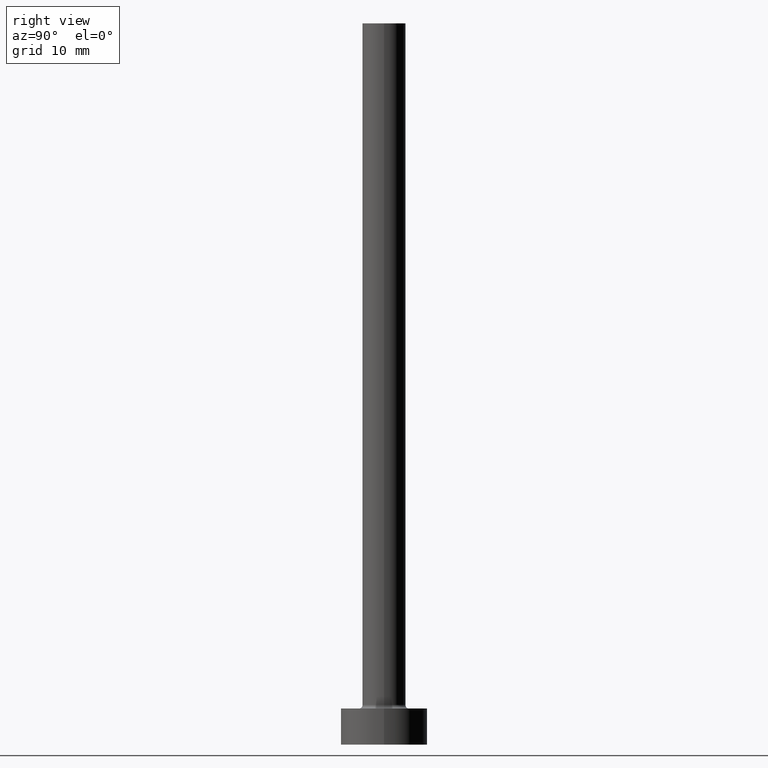
[diagram: clean part render]
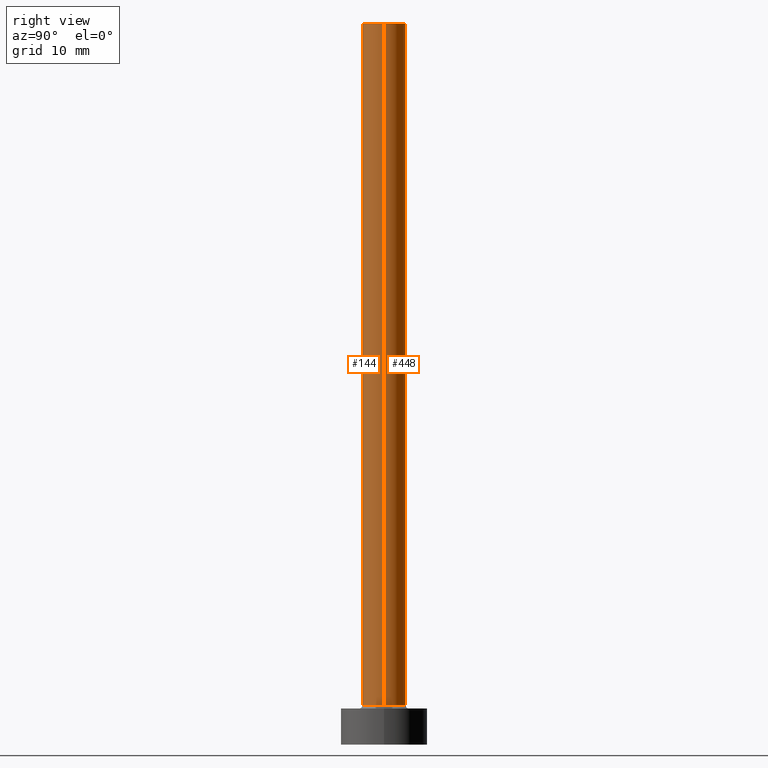
[diagram: same view with one multi-face feature highlighted, each face labeled with its STEP entity id]
A machine part, right view. The highlighted faces form ONE feature: a constant-radius fillet chain: 2 tangent blend faces with common blend radius 3 mm. The faces share edges in the B-rep.
Their STEP definitions:
[1] entity #448 (Cylinder):
#6 = VERTEX_POINT ( 'NONE', #192 ) ;
#8 = AXIS2_PLACEMENT_3D ( 'NONE', #281, #450, #112 ) ;
#25 = EDGE_CURVE ( 'NONE', #282, #210, #42, .T. ) ;
#26 = CARTESIAN_POINT ( 'NONE',  ( 3.000000000000000444, 3.673940397442060361E-16, 100.0000000000000000 ) ) ;
#42 = LINE ( 'NONE', #44, #393 ) ;
#44 = CARTESIAN_POINT ( 'NONE',  ( -3.000000000000000444, 0.000000000000000000, 100.0000000000000000 ) ) ;
#58 = DIRECTION ( 'NONE',  ( 0.000000000000000000, 0.000000000000000000, 1.000000000000000000 ) ) ;
#61 = CARTESIAN_POINT ( 'NONE',  ( -3.000000000000000444, 0.000000000000000000, 5.500000000000005329 ) ) ;
#76 = DIRECTION ( 'NONE',  ( -0.000000000000000000, -0.000000000000000000, -1.000000000000000000 ) ) ;
#92 = CIRCLE ( 'NONE', #349, 3.000000000000000444 ) ;
#112 = DIRECTION ( 'NONE',  ( -1.000000000000000000, 0.000000000000000000, 0.000000000000000000 ) ) ;
#115 = EDGE_LOOP ( 'NONE', ( #387, #252, #214, #177 ) ) ;
#117 = AXIS2_PLACEMENT_3D ( 'NONE', #131, #58, #341 ) ;
#127 = CARTESIAN_POINT ( 'NONE',  ( 3.000000000000000444, 3.673940397442060361E-16, 5.500000000000005329 ) ) ;
#131 = CARTESIAN_POINT ( 'NONE',  ( 0.000000000000000000, 0.000000000000000000, 5.500000000000005329 ) ) ;
#146 = CYLINDRICAL_SURFACE ( 'NONE', #8, 3.000000000000000444 ) ;
#156 = CIRCLE ( 'NONE', #117, 3.000000000000000444 ) ;
#177 = ORIENTED_EDGE ( 'NONE', *, *, #25, .F. ) ;
#178 = CARTESIAN_POINT ( 'NONE',  ( 0.000000000000000000, 0.000000000000000000, 100.0000000000000000 ) ) ;
#187 = VERTEX_POINT ( 'NONE', #127 ) ;
#192 = CARTESIAN_POINT ( 'NONE',  ( 3.000000000000000444, 3.673940397442060361E-16, 100.0000000000000000 ) ) ;
#208 = DIRECTION ( 'NONE',  ( -0.000000000000000000, -0.000000000000000000, -1.000000000000000000 ) ) ;
#210 = VERTEX_POINT ( 'NONE', #61 ) ;
#211 = EDGE_CURVE ( 'NONE', #187, #210, #156, .T. ) ;
#214 = ORIENTED_EDGE ( 'NONE', *, *, #211, .T. ) ;
#216 = LINE ( 'NONE', #26, #395 ) ;
#252 = ORIENTED_EDGE ( 'NONE', *, *, #402, .T. ) ;
#281 = CARTESIAN_POINT ( 'NONE',  ( 0.000000000000000000, 0.000000000000000000, 100.0000000000000000 ) ) ;
#282 = VERTEX_POINT ( 'NONE', #307 ) ;
#307 = CARTESIAN_POINT ( 'NONE',  ( -3.000000000000000444, 0.000000000000000000, 100.0000000000000000 ) ) ;
#314 = DIRECTION ( 'NONE',  ( 0.000000000000000000, 0.000000000000000000, 1.000000000000000000 ) ) ;
#341 = DIRECTION ( 'NONE',  ( 1.000000000000000000, 0.000000000000000000, 0.000000000000000000 ) ) ;
#349 = AXIS2_PLACEMENT_3D ( 'NONE', #178, #314, #424 ) ;
#387 = ORIENTED_EDGE ( 'NONE', *, *, #429, .F. ) ;
#393 = VECTOR ( 'NONE', #76, 1000.000000000000000 ) ;
#395 = VECTOR ( 'NONE', #208, 1000.000000000000000 ) ;
#402 = EDGE_CURVE ( 'NONE', #6, #187, #216, .T. ) ;
#424 = DIRECTION ( 'NONE',  ( 1.000000000000000000, 0.000000000000000000, 0.000000000000000000 ) ) ;
#429 = EDGE_CURVE ( 'NONE', #6, #282, #92, .T. ) ;
#448 = ADVANCED_FACE ( 'NONE', ( #455 ), #146, .T. ) ;
#450 = DIRECTION ( 'NONE',  ( -0.000000000000000000, -0.000000000000000000, -1.000000000000000000 ) ) ;
#455 = FACE_OUTER_BOUND ( 'NONE', #115, .T. ) ;
[2] entity #144 (Cylinder):
#6 = VERTEX_POINT ( 'NONE', #192 ) ;
#25 = EDGE_CURVE ( 'NONE', #282, #210, #42, .T. ) ;
#26 = CARTESIAN_POINT ( 'NONE',  ( 3.000000000000000444, 3.673940397442060361E-16, 100.0000000000000000 ) ) ;
#33 = AXIS2_PLACEMENT_3D ( 'NONE', #155, #89, #447 ) ;
#35 = DIRECTION ( 'NONE',  ( 0.000000000000000000, 0.000000000000000000, 1.000000000000000000 ) ) ;
#42 = LINE ( 'NONE', #44, #393 ) ;
#44 = CARTESIAN_POINT ( 'NONE',  ( -3.000000000000000444, 0.000000000000000000, 100.0000000000000000 ) ) ;
#61 = CARTESIAN_POINT ( 'NONE',  ( -3.000000000000000444, 0.000000000000000000, 5.500000000000005329 ) ) ;
#76 = DIRECTION ( 'NONE',  ( -0.000000000000000000, -0.000000000000000000, -1.000000000000000000 ) ) ;
#89 = DIRECTION ( 'NONE',  ( -0.000000000000000000, -0.000000000000000000, -1.000000000000000000 ) ) ;
#91 = DIRECTION ( 'NONE',  ( 0.000000000000000000, 0.000000000000000000, 1.000000000000000000 ) ) ;
#127 = CARTESIAN_POINT ( 'NONE',  ( 3.000000000000000444, 3.673940397442060361E-16, 5.500000000000005329 ) ) ;
#144 = ADVANCED_FACE ( 'NONE', ( #268 ), #375, .T. ) ;
#149 = ORIENTED_EDGE ( 'NONE', *, *, #174, .F. ) ;
#155 = CARTESIAN_POINT ( 'NONE',  ( 0.000000000000000000, 0.000000000000000000, 100.0000000000000000 ) ) ;
#174 = EDGE_CURVE ( 'NONE', #282, #6, #422, .T. ) ;
#187 = VERTEX_POINT ( 'NONE', #127 ) ;
#192 = CARTESIAN_POINT ( 'NONE',  ( 3.000000000000000444, 3.673940397442060361E-16, 100.0000000000000000 ) ) ;
#194 = DIRECTION ( 'NONE',  ( 1.000000000000000000, 0.000000000000000000, 0.000000000000000000 ) ) ;
#208 = DIRECTION ( 'NONE',  ( -0.000000000000000000, -0.000000000000000000, -1.000000000000000000 ) ) ;
#210 = VERTEX_POINT ( 'NONE', #61 ) ;
#216 = LINE ( 'NONE', #26, #395 ) ;
#243 = ORIENTED_EDGE ( 'NONE', *, *, #25, .T. ) ;
#268 = FACE_OUTER_BOUND ( 'NONE', #311, .T. ) ;
#270 = CIRCLE ( 'NONE', #389, 3.000000000000000444 ) ;
#282 = VERTEX_POINT ( 'NONE', #307 ) ;
#285 = AXIS2_PLACEMENT_3D ( 'NONE', #438, #91, #194 ) ;
#307 = CARTESIAN_POINT ( 'NONE',  ( -3.000000000000000444, 0.000000000000000000, 100.0000000000000000 ) ) ;
#311 = EDGE_LOOP ( 'NONE', ( #418, #149, #243, #433 ) ) ;
#312 = CARTESIAN_POINT ( 'NONE',  ( 0.000000000000000000, 0.000000000000000000, 5.500000000000005329 ) ) ;
#375 = CYLINDRICAL_SURFACE ( 'NONE', #33, 3.000000000000000444 ) ;
#383 = EDGE_CURVE ( 'NONE', #210, #187, #270, .T. ) ;
#384 = DIRECTION ( 'NONE',  ( 1.000000000000000000, 0.000000000000000000, 0.000000000000000000 ) ) ;
#389 = AXIS2_PLACEMENT_3D ( 'NONE', #312, #35, #384 ) ;
#393 = VECTOR ( 'NONE', #76, 1000.000000000000000 ) ;
#395 = VECTOR ( 'NONE', #208, 1000.000000000000000 ) ;
#402 = EDGE_CURVE ( 'NONE', #6, #187, #216, .T. ) ;
#418 = ORIENTED_EDGE ( 'NONE', *, *, #402, .F. ) ;
#422 = CIRCLE ( 'NONE', #285, 3.000000000000000444 ) ;
#433 = ORIENTED_EDGE ( 'NONE', *, *, #383, .T. ) ;
#438 = CARTESIAN_POINT ( 'NONE',  ( 0.000000000000000000, 0.000000000000000000, 100.0000000000000000 ) ) ;
#447 = DIRECTION ( 'NONE',  ( -1.000000000000000000, 0.000000000000000000, 0.000000000000000000 ) ) ;